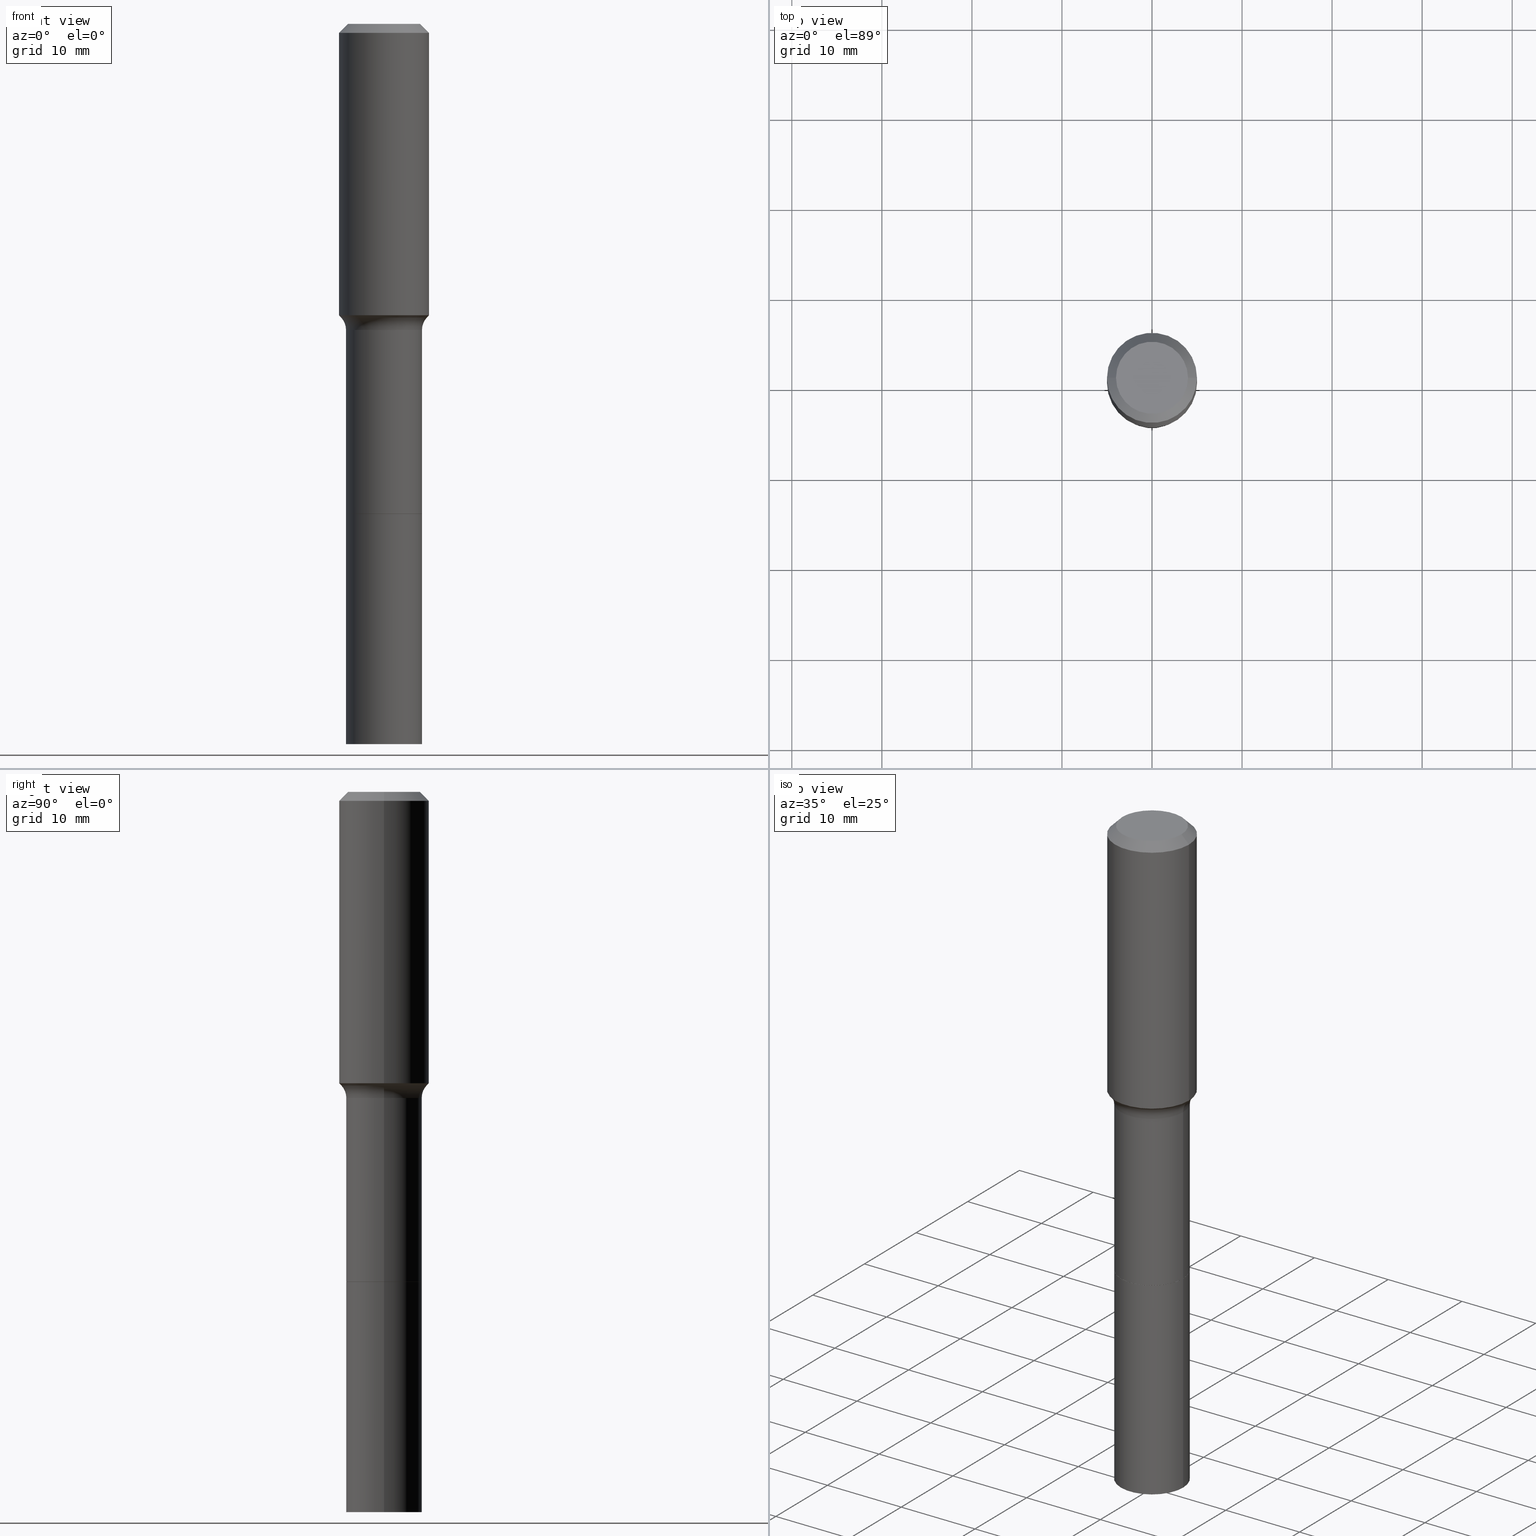
[diagram: canonical four-view strip — front | top / right | iso, engineering-drawing reading convention]
A machine part, canonical four-view strip (front | top / right | iso — engineering-drawing reading convention). The complete STEP part file that produces these views, byte-faithful:
ISO-10303-21;
HEADER;
FILE_DESCRIPTION (( 'STEP AP203' ),
    '1' );
FILE_NAME ('58831.STEP',
    '2025-04-01T15:25:27',
    ( '' ),
    ( '' ),
    'SwSTEP 2.0',
    'SolidWorks 2024',
    '' );
FILE_SCHEMA (( 'CONFIG_CONTROL_DESIGN' ));
ENDSEC;

DATA;
#1 = EDGE_CURVE ( 'NONE', #290, #178, #314, .T. ) ;
#2 = CIRCLE ( 'NONE', #370, 0.1968500000000001915 ) ;
#3 = ORIENTED_EDGE ( 'NONE', *, *, #239, .T. ) ;
#4 = EDGE_LOOP ( 'NONE', ( #213, #174 ) ) ;
#5 = CARTESIAN_POINT ( 'NONE',  ( 3.273504543959424474E-29, -4.673696920175435525E-15, -1.338600000000000234 ) ) ;
#6 = ADVANCED_FACE ( 'NONE', ( #500 ), #135, .F. ) ;
#7 = VECTOR ( 'NONE', #390, 39.37007874015748143 ) ;
#8 = ORIENTED_EDGE ( 'NONE', *, *, #257, .T. ) ;
#9 = SECURITY_CLASSIFICATION ( '', '', #29 ) ;
#10 = CARTESIAN_POINT ( 'NONE',  ( 3.115538477048191315E-29, -4.448163241971869351E-15, -1.274004587246543307 ) ) ;
#11 = DIRECTION ( 'NONE',  ( -2.445468806185136597E-29, 3.491481338843145583E-15, 1.000000000000000000 ) ) ;
#12 = CONICAL_SURFACE ( 'NONE', #119, 0.1874917038704663474, 0.7504915783575719646 ) ;
#13 = ORIENTED_EDGE ( 'NONE', *, *, #60, .T. ) ;
#14 = AXIS2_PLACEMENT_3D ( 'NONE', #294, #244, #446 ) ;
#15 = FACE_OUTER_BOUND ( 'NONE', #439, .T. ) ;
#16 = DIRECTION ( 'NONE',  ( -2.445468806185136597E-29, 3.491481338843145583E-15, 1.000000000000000000 ) ) ;
#17 = EDGE_LOOP ( 'NONE', ( #479, #375, #46, #85 ) ) ;
#18 = DIRECTION ( 'NONE',  ( 2.445468806185136597E-29, -3.491481338843145583E-15, -1.000000000000000000 ) ) ;
#19 = CARTESIAN_POINT ( 'NONE',  ( 0.1968500000000001082, -1.374596203102542397E-15, 9.598753983154305062E-30 ) ) ;
#20 = ORIENTED_EDGE ( 'NONE', *, *, #42, .T. ) ;
#21 = EDGE_CURVE ( 'NONE', #334, #205, #286, .T. ) ;
#22 = DIRECTION ( 'NONE',  ( -2.445468806185136597E-29, 3.491481338843145583E-15, 1.000000000000000000 ) ) ;
#23 = CARTESIAN_POINT ( 'NONE',  ( -0.1968500000000001915, -3.049459866628111563E-15, -1.274004587246543307 ) ) ;
#24 = VERTEX_POINT ( 'NONE', #23 ) ;
#25 = CIRCLE ( 'NONE', #157, 0.1574800000000000089 ) ;
#26 = DIRECTION ( 'NONE',  ( 1.000000000000000000, -6.982962677686266711E-15, 4.876176775795935793E-29 ) ) ;
#27 = DIRECTION ( 'NONE',  ( 7.105427357601001859E-15, 1.000000000000000000, -3.491481338843145583E-15 ) ) ;
#28 = EDGE_CURVE ( 'NONE', #411, #194, #423, .T. ) ;
#29 = SECURITY_CLASSIFICATION_LEVEL ( 'unclassified' ) ;
#30 = CIRCLE ( 'NONE', #317, 0.1874917038704663474 ) ;
#31 = DIRECTION ( 'NONE',  ( -2.445468806185136597E-29, 3.491481338843145583E-15, 1.000000000000000000 ) ) ;
#32 = COORDINATED_UNIVERSAL_TIME_OFFSET ( 5, 0, .BEHIND. ) ;
#33 = CIRCLE ( 'NONE', #237, 0.1574800000000000089 ) ;
#34 = DIRECTION ( 'NONE',  ( -2.445468806185136597E-29, 3.491481338843145583E-15, 1.000000000000000000 ) ) ;
#35 = ADVANCED_FACE ( 'NONE', ( #67 ), #410, .T. ) ;
#36 = CARTESIAN_POINT ( 'NONE',  ( -0.1968500000000000527, 1.237136582792286422E-15, -0.03937000000000030059 ) ) ;
#37 = CIRCLE ( 'NONE', #162, 0.1659999999999999254 ) ;
#38 = DIRECTION ( 'NONE',  ( 1.000000000000000000, -6.982962677686268288E-15, 0.000000000000000000 ) ) ;
#39 = PRODUCT_DEFINITION_FORMATION_WITH_SPECIFIED_SOURCE ( 'ANY', '', #430, .NOT_KNOWN. ) ;
#40 = CONICAL_SURFACE ( 'NONE', #208, 0.1655000000000000082, 0.7853981633977896726 ) ;
#41 = ORIENTED_EDGE ( 'NONE', *, *, #309, .F. ) ;
#42 = EDGE_CURVE ( 'NONE', #178, #290, #399, .T. ) ;
#43 = ORIENTED_EDGE ( 'NONE', *, *, #230, .F. ) ;
#44 = EDGE_CURVE ( 'NONE', #489, #24, #128, .T. ) ;
#45 = DIRECTION ( 'NONE',  ( 1.000000000000000000, -6.982962677686265922E-15, 4.876176775795935793E-29 ) ) ;
#46 = ORIENTED_EDGE ( 'NONE', *, *, #120, .T. ) ;
#47 = FACE_OUTER_BOUND ( 'NONE', #369, .T. ) ;
#48 = DIRECTION ( 'NONE',  ( -2.445468806185136597E-29, 3.491481338843145583E-15, 1.000000000000000000 ) ) ;
#49 = VECTOR ( 'NONE', #425, 39.37007874015748143 ) ;
#50 = ORIENTED_EDGE ( 'NONE', *, *, #76, .F. ) ;
#51 = AXIS2_PLACEMENT_3D ( 'NONE', #349, #270, #342 ) ;
#52 = CARTESIAN_POINT ( 'NONE',  ( 0.000000000000000000, 0.000000000000000000, 0.000000000000000000 ) ) ;
#53 = APPLICATION_CONTEXT ( 'configuration controlled 3d designs of mechanical parts and assemblies' ) ;
#54 = CARTESIAN_POINT ( 'NONE',  ( 5.237215995326088654E-29, -7.477356435266480697E-15, -2.141600000000000392 ) ) ;
#55 = VECTOR ( 'NONE', #211, 39.37007874015748143 ) ;
#56 = ORIENTED_EDGE ( 'NONE', *, *, #266, .T. ) ;
#57 = CONICAL_SURFACE ( 'NONE', #398, 0.1968500000000000527, 0.7853981633974450594 ) ;
#58 = CARTESIAN_POINT ( 'NONE',  ( -0.1659999999999999809, -4.895152866024481976E-15, -2.141100000000000225 ) ) ;
#59 = FACE_OUTER_BOUND ( 'NONE', #499, .T. ) ;
#60 = EDGE_CURVE ( 'NONE', #194, #411, #473, .T. ) ;
#61 = EDGE_LOOP ( 'NONE', ( #88, #20, #322, #163 ) ) ;
#62 = FACE_OUTER_BOUND ( 'NONE', #61, .T. ) ;
#63 = CARTESIAN_POINT ( 'NONE',  ( 0.1655000000000000082, -8.633036758423557081E-15, -2.141599999999999948 ) ) ;
#64 = VERTEX_POINT ( 'NONE', #326 ) ;
#65 = PERSON_AND_ORGANIZATION_ROLE ( 'creator' ) ;
#66 = AXIS2_PLACEMENT_3D ( 'NONE', #511, #426, #418 ) ;
#67 = FACE_OUTER_BOUND ( 'NONE', #17, .T. ) ;
#68 = EDGE_CURVE ( 'NONE', #126, #198, #25, .T. ) ;
#69 = DIRECTION ( 'NONE',  ( -2.445468806185136877E-29, 3.491481338843145188E-15, 1.000000000000000000 ) ) ;
#70 = PERSON_AND_ORGANIZATION_ROLE ( 'creator' ) ;
#71 = CARTESIAN_POINT ( 'NONE',  ( -0.2459999999999999409, -2.925761790205589488E-15, -1.338600000000000234 ) ) ;
#72 = MECHANICAL_CONTEXT ( 'NONE', #303, 'mechanical' ) ;
#73 = DIRECTION ( 'NONE',  ( -1.000000000000000000, 6.982962677686265922E-15, -4.876176775795935793E-29 ) ) ;
#74 =( NAMED_UNIT ( * ) SI_UNIT ( $, .STERADIAN. ) SOLID_ANGLE_UNIT ( ) );
#75 = CARTESIAN_POINT ( 'NONE',  ( 5.237215995326088654E-29, -7.477356435266480697E-15, -2.141600000000000392 ) ) ;
#76 = EDGE_CURVE ( 'NONE', #24, #417, #2, .T. ) ;
#77 = FACE_OUTER_BOUND ( 'NONE', #121, .T. ) ;
#78 = ORIENTED_EDGE ( 'NONE', *, *, #358, .F. ) ;
#79 = LOCAL_TIME ( 11, 25, 27.00000000000000000, #236 ) ;
#80 = PERSON_AND_ORGANIZATION ( #517, #355 ) ;
#81 = CC_DESIGN_PERSON_AND_ORGANIZATION_ASSIGNMENT ( #262, #65, ( #279 ) ) ;
#82 = AXIS2_PLACEMENT_3D ( 'NONE', #450, #248, #443 ) ;
#83 = ORIENTED_EDGE ( 'NONE', *, *, #167, .T. ) ;
#84 = DIRECTION ( 'NONE',  ( -2.445468806185136597E-29, 3.491481338843145583E-15, 1.000000000000000000 ) ) ;
#85 = ORIENTED_EDGE ( 'NONE', *, *, #374, .F. ) ;
#86 = CARTESIAN_POINT ( 'NONE',  ( 5.237215995326088654E-29, -7.477356435266480697E-15, -2.141600000000000392 ) ) ;
#87 = DIRECTION ( 'NONE',  ( -1.000000000000000000, 6.982962677686265922E-15, -4.876176775795935793E-29 ) ) ;
#88 = ORIENTED_EDGE ( 'NONE', *, *, #428, .F. ) ;
#89 = DIRECTION ( 'NONE',  ( -2.445468806185136877E-29, 3.491481338843145188E-15, 1.000000000000000000 ) ) ;
#90 = FACE_OUTER_BOUND ( 'NONE', #297, .T. ) ;
#91 = ORIENTED_EDGE ( 'NONE', *, *, #282, .F. ) ;
#92 = DIRECTION ( 'NONE',  ( 0.6819983600625060260, -2.208861293262552322E-15, 0.7313537016191634654 ) ) ;
#93 = CARTESIAN_POINT ( 'NONE',  ( 0.1659999999999999531, -1.159171804495919785E-15, 8.094453447821250782E-30 ) ) ;
#94 = CIRCLE ( 'NONE', #453, 0.1660000000000000087 ) ;
#95 = ORIENTED_EDGE ( 'NONE', *, *, #239, .F. ) ;
#96 = CARTESIAN_POINT ( 'NONE',  ( -0.1874917038704663752, -3.150993474388610036E-15, -1.284040131195000267 ) ) ;
#97 = ORIENTED_EDGE ( 'NONE', *, *, #68, .F. ) ;
#98 = ORIENTED_EDGE ( 'NONE', *, *, #44, .F. ) ;
#99 = CALENDAR_DATE ( 2025, 1, 4 ) ;
#100 = CARTESIAN_POINT ( 'NONE',  ( 5.237215995326088654E-29, -7.477356435266480697E-15, -2.141600000000000392 ) ) ;
#101 = APPROVAL ( #152, 'UNSPECIFIED' ) ;
#102 = AXIS2_PLACEMENT_3D ( 'NONE', #112, #429, #462 ) ;
#103 = COORDINATED_UNIVERSAL_TIME_OFFSET ( 5, 0, .BEHIND. ) ;
#104 = CIRCLE ( 'NONE', #503, 0.1655000000000000082 ) ;
#105 = DIRECTION ( 'NONE',  ( -1.000000000000000000, 7.105427357601005014E-15, 0.000000000000000000 ) ) ;
#106 = AXIS2_PLACEMENT_3D ( 'NONE', #131, #325, #200 ) ;
#107 = COORDINATED_UNIVERSAL_TIME_OFFSET ( 5, 0, .BEHIND. ) ;
#108 = AXIS2_PLACEMENT_3D ( 'NONE', #340, #11, #218 ) ;
#109 = DIRECTION ( 'NONE',  ( -2.445468806185136597E-29, 3.491481338843145583E-15, 1.000000000000000000 ) ) ;
#110 = CARTESIAN_POINT ( 'NONE',  ( 7.702248551960706711E-29, -1.099676962482037231E-14, -3.149600000000000399 ) ) ;
#111 = CARTESIAN_POINT ( 'NONE',  ( 5.237215995326088654E-29, -7.477356435266480697E-15, -2.141599999999999948 ) ) ;
#112 = CARTESIAN_POINT ( 'NONE',  ( 0.2459999999999999409, -6.391505738886256568E-15, -1.338600000000000234 ) ) ;
#113 = CALENDAR_DATE ( 2025, 1, 4 ) ;
#114 = LINE ( 'NONE', #190, #188 ) ;
#115 = AXIS2_PLACEMENT_3D ( 'NONE', #413, #378, #132 ) ;
#116 = MANIFOLD_SOLID_BREP ( 'Body-Move/Copy2[1]', #357 ) ;
#117 = EDGE_LOOP ( 'NONE', ( #41, #452, #56, #495 ) ) ;
#118 = ADVANCED_FACE ( 'NONE', ( #90 ), #494, .T. ) ;
#119 = AXIS2_PLACEMENT_3D ( 'NONE', #406, #285, #170 ) ;
#120 = EDGE_CURVE ( 'NONE', #417, #64, #203, .T. ) ;
#121 = EDGE_LOOP ( 'NONE', ( #441, #397 ) ) ;
#122 = VERTEX_POINT ( 'NONE', #63 ) ;
#123 = CARTESIAN_POINT ( 'NONE',  ( 0.1874917038704663474, -5.792449726896320379E-15, -1.284040131195000267 ) ) ;
#124 = AXIS2_PLACEMENT_3D ( 'NONE', #86, #84, #197 ) ;
#125 = AXIS2_PLACEMENT_3D ( 'NONE', #54, #251, #138 ) ;
#126 = VERTEX_POINT ( 'NONE', #333 ) ;
#127 = LINE ( 'NONE', #175, #437 ) ;
#128 = LINE ( 'NONE', #385, #179 ) ;
#129 = EDGE_LOOP ( 'NONE', ( #402, #258, #249, #43 ) ) ;
#130 = CC_DESIGN_PERSON_AND_ORGANIZATION_ASSIGNMENT ( #308, #387, ( #39 ) ) ;
#131 = CARTESIAN_POINT ( 'NONE',  ( 9.627810689950955906E-31, -1.374596203102556794E-16, -0.03937000000000030059 ) ) ;
#132 = DIRECTION ( 'NONE',  ( 1.000000000000000000, -6.982962677686263555E-15, 0.000000000000000000 ) ) ;
#133 = ORIENTED_EDGE ( 'NONE', *, *, #409, .F. ) ;
#134 = FACE_OUTER_BOUND ( 'NONE', #117, .T. ) ;
#135 = PLANE ( 'NONE',  #516 ) ;
#136 = ORIENTED_EDGE ( 'NONE', *, *, #150, .F. ) ;
#137 = DIRECTION ( 'NONE',  ( -2.445468806185136597E-29, 3.491481338843145583E-15, 1.000000000000000000 ) ) ;
#138 = DIRECTION ( 'NONE',  ( 1.000000000000000000, -6.982962677686268288E-15, 0.000000000000000000 ) ) ;
#139 = ADVANCED_FACE ( 'NONE', ( #59 ), #12, .T. ) ;
#140 = EDGE_LOOP ( 'NONE', ( #133, #315, #83, #183 ) ) ;
#141 =( LENGTH_UNIT ( ) NAMED_UNIT ( * ) SI_UNIT ( $, .METRE. ) );
#142 = CARTESIAN_POINT ( 'NONE',  ( -0.1660000000000002307, -8.057562088681656781E-15, -3.149600000000000399 ) ) ;
#143 = LOCAL_TIME ( 11, 25, 27.00000000000000000, #107 ) ;
#144 = CARTESIAN_POINT ( 'NONE',  ( -0.1660000000000000087, -8.057562088681659936E-15, -2.141600000000000392 ) ) ;
#145 = CIRCLE ( 'NONE', #82, 0.1655000000000000082 ) ;
#146 = PERSON_AND_ORGANIZATION ( #517, #355 ) ;
#147 = AXIS2_PLACEMENT_3D ( 'NONE', #466, #109, #214 ) ;
#148 = DIRECTION ( 'NONE',  ( -0.7071067811867889352, 7.493145998871226640E-15, 0.7071067811863060992 ) ) ;
#149 = APPROVAL_DATE_TIME ( #424, #195 ) ;
#150 = EDGE_CURVE ( 'NONE', #64, #480, #278, .T. ) ;
#151 = DIRECTION ( 'NONE',  ( -2.445468806185136877E-29, 3.491481338843145188E-15, 1.000000000000000000 ) ) ;
#152 = APPROVAL_STATUS ( 'not_yet_approved' ) ;
#153 = LINE ( 'NONE', #193, #7 ) ;
#154 = ORIENTED_EDGE ( 'NONE', *, *, #191, .F. ) ;
#155 = EDGE_CURVE ( 'NONE', #171, #122, #145, .T. ) ;
#156 = APPROVAL_DATE_TIME ( #272, #101 ) ;
#157 = AXIS2_PLACEMENT_3D ( 'NONE', #177, #16, #455 ) ;
#158 = ORIENTED_EDGE ( 'NONE', *, *, #212, .F. ) ;
#159 = ADVANCED_FACE ( 'NONE', ( #207 ), #477, .T. ) ;
#160 = ORIENTED_EDGE ( 'NONE', *, *, #253, .F. ) ;
#161 = DIRECTION ( 'NONE',  ( 1.000000000000000000, -6.982962677686266711E-15, 4.883557194083112340E-29 ) ) ;
#162 = AXIS2_PLACEMENT_3D ( 'NONE', #510, #31, #187 ) ;
#163 = ORIENTED_EDGE ( 'NONE', *, *, #21, .F. ) ;
#164 = PLANE ( 'NONE',  #348 ) ;
#165 = CONICAL_SURFACE ( 'NONE', #14, 0.1968500000000000527, 0.7853981633974450594 ) ;
#166 = DIRECTION ( 'NONE',  ( 1.000000000000000000, -6.982962677686265133E-15, 0.000000000000000000 ) ) ;
#167 = EDGE_CURVE ( 'NONE', #194, #404, #372, .T. ) ;
#168 = ORIENTED_EDGE ( 'NONE', *, *, #358, .T. ) ;
#169 = FACE_OUTER_BOUND ( 'NONE', #379, .T. ) ;
#170 = DIRECTION ( 'NONE',  ( 1.000000000000000000, -6.982962677686266711E-15, 0.000000000000000000 ) ) ;
#171 = VERTEX_POINT ( 'NONE', #507 ) ;
#172 = DIRECTION ( 'NONE',  ( 1.000000000000000000, -6.982962677686265922E-15, 4.876176775795935793E-29 ) ) ;
#173 = CARTESIAN_POINT ( 'NONE',  ( 9.627810689950955906E-31, -1.374596203102556794E-16, -0.03937000000000030059 ) ) ;
#174 = ORIENTED_EDGE ( 'NONE', *, *, #21, .T. ) ;
#175 = CARTESIAN_POINT ( 'NONE',  ( -0.1659999999999999531, 1.179500941361765976E-15, -8.165432249823140313E-30 ) ) ;
#176 = CC_DESIGN_PERSON_AND_ORGANIZATION_ASSIGNMENT ( #186, #469, ( #9 ) ) ;
#177 = CARTESIAN_POINT ( 'NONE',  ( -9.427742298522567634E-47, 1.346031739168368355E-32, 3.855188123715870730E-18 ) ) ;
#178 = VERTEX_POINT ( 'NONE', #142 ) ;
#179 = VECTOR ( 'NONE', #260, 39.37007874015748143 ) ;
#180 = DATE_AND_TIME ( #300, #143 ) ;
#181 = DIRECTION ( 'NONE',  ( 1.000000000000000000, -6.982962677686266711E-15, 0.000000000000000000 ) ) ;
#182 = APPLICATION_PROTOCOL_DEFINITION ( 'international standard', 'config_control_design', 1994, #53 ) ;
#183 = ORIENTED_EDGE ( 'NONE', *, *, #331, .F. ) ;
#184 = DIRECTION ( 'NONE',  ( -2.445468806185136597E-29, 3.491481338843145583E-15, 1.000000000000000000 ) ) ;
#185 = AXIS2_PLACEMENT_3D ( 'NONE', #350, #354, #392 ) ;
#186 = PERSON_AND_ORGANIZATION ( #517, #355 ) ;
#187 = DIRECTION ( 'NONE',  ( 1.000000000000000000, -6.982962677686265922E-15, 0.000000000000000000 ) ) ;
#188 = VECTOR ( 'NONE', #148, 39.37007874015748143 ) ;
#189 = FACE_OUTER_BOUND ( 'NONE', #359, .T. ) ;
#190 = CARTESIAN_POINT ( 'NONE',  ( -0.1655000000000000082, -6.301408207583514240E-15, -2.141599999999999948 ) ) ;
#191 = EDGE_CURVE ( 'NONE', #171, #411, #114, .T. ) ;
#192 = CIRCLE ( 'NONE', #51, 0.1874917038704663474 ) ;
#193 = CARTESIAN_POINT ( 'NONE',  ( 0.1968500000000000527, -1.487948651171581996E-15, -0.03937000000000030059 ) ) ;
#194 = VERTEX_POINT ( 'NONE', #273 ) ;
#195 = APPROVAL ( #265, 'UNSPECIFIED' ) ;
#196 = ORIENTED_EDGE ( 'NONE', *, *, #68, .T. ) ;
#197 = DIRECTION ( 'NONE',  ( 1.000000000000000000, -6.982962677686263555E-15, 0.000000000000000000 ) ) ;
#198 = VERTEX_POINT ( 'NONE', #356 ) ;
#199 = ADVANCED_BREP_SHAPE_REPRESENTATION ( '58831', ( #116, #451, #66 ), #344 ) ;
#200 = DIRECTION ( 'NONE',  ( 1.000000000000000000, -6.982962677686266711E-15, 0.000000000000000000 ) ) ;
#201 = EDGE_CURVE ( 'NONE', #198, #126, #33, .T. ) ;
#202 = CONICAL_SURFACE ( 'NONE', #185, 0.1874917038704663474, 0.7504915783575719646 ) ;
#203 = LINE ( 'NONE', #19, #55 ) ;
#204 = CC_DESIGN_APPROVAL ( #101, ( #9 ) ) ;
#205 = VERTEX_POINT ( 'NONE', #346 ) ;
#206 = DIRECTION ( 'NONE',  ( -2.445468806185136597E-29, 3.491481338843145583E-15, 1.000000000000000000 ) ) ;
#207 = FACE_OUTER_BOUND ( 'NONE', #129, .T. ) ;
#208 = AXIS2_PLACEMENT_3D ( 'NONE', #454, #137, #362 ) ;
#209 = ORIENTED_EDGE ( 'NONE', *, *, #253, .T. ) ;
#210 = PLANE ( 'NONE',  #302 ) ;
#211 = DIRECTION ( 'NONE',  ( -2.445468806185136877E-29, 3.491481338843145188E-15, 1.000000000000000000 ) ) ;
#212 = EDGE_CURVE ( 'NONE', #205, #334, #94, .T. ) ;
#213 = ORIENTED_EDGE ( 'NONE', *, *, #212, .T. ) ;
#214 = DIRECTION ( 'NONE',  ( 1.000000000000000000, -6.982962677686263555E-15, 0.000000000000000000 ) ) ;
#215 = DIRECTION ( 'NONE',  ( -2.445468806185136877E-29, 3.491481338843145188E-15, 1.000000000000000000 ) ) ;
#216 = ORIENTED_EDGE ( 'NONE', *, *, #391, .F. ) ;
#217 = ADVANCED_FACE ( 'NONE', ( #189 ), #202, .T. ) ;
#218 = DIRECTION ( 'NONE',  ( 1.000000000000000000, -6.982962677686266711E-15, 4.876176775795935793E-29 ) ) ;
#219 = AXIS2_PLACEMENT_3D ( 'NONE', #498, #487, #367 ) ;
#220 = LENGTH_MEASURE_WITH_UNIT ( LENGTH_MEASURE( 0.02539999999999999897 ), #141 );
#221 = LINE ( 'NONE', #226, #227 ) ;
#222 = DIRECTION ( 'NONE',  ( -2.445468806185136597E-29, 3.491481338843145583E-15, 1.000000000000000000 ) ) ;
#223 = CARTESIAN_POINT ( 'NONE',  ( 3.140080086727243021E-29, -4.483202156393047465E-15, -1.284040131195000267 ) ) ;
#224 = EDGE_CURVE ( 'NONE', #459, #404, #476, .T. ) ;
#225 = APPLICATION_PROTOCOL_DEFINITION ( 'international standard', 'config_control_design', 1994, #303 ) ;
#226 = CARTESIAN_POINT ( 'NONE',  ( -0.1968500000000001082, 1.398703375343757985E-15, -9.682923725166787881E-30 ) ) ;
#227 = VECTOR ( 'NONE', #151, 39.37007874015748143 ) ;
#228 = APPROVAL_ROLE ( '' ) ;
#229 = LINE ( 'NONE', #271, #461 ) ;
#230 = EDGE_CURVE ( 'NONE', #122, #194, #513, .T. ) ;
#231 = DIRECTION ( 'NONE',  ( 2.438088387897960049E-29, -3.491481338843145188E-15, -1.000000000000000000 ) ) ;
#232 = CIRCLE ( 'NONE', #394, 0.08000000000000007105 ) ;
#233 = CC_DESIGN_APPROVAL ( #483, ( #279 ) ) ;
#234 = ORIENTED_EDGE ( 'NONE', *, *, #331, .T. ) ;
#235 = CIRCLE ( 'NONE', #106, 0.1968500000000000527 ) ;
#236 = COORDINATED_UNIVERSAL_TIME_OFFSET ( 5, 0, .BEHIND. ) ;
#237 = AXIS2_PLACEMENT_3D ( 'NONE', #301, #34, #393 ) ;
#238 = PRODUCT_DEFINITION_SHAPE ( 'NONE', 'NONE',  #279 ) ;
#239 = EDGE_CURVE ( 'NONE', #489, #515, #232, .T. ) ;
#240 = ORIENTED_EDGE ( 'NONE', *, *, #201, .T. ) ;
#241 = CARTESIAN_POINT ( 'NONE',  ( -0.1660000000000001197, -6.297855493904714130E-15, -2.141600000000000392 ) ) ;
#242 = AXIS2_PLACEMENT_3D ( 'NONE', #491, #289, #329 ) ;
#243 = ORIENTED_EDGE ( 'NONE', *, *, #504, .T. ) ;
#244 = DIRECTION ( 'NONE',  ( 2.445468806185136597E-29, -3.491481338843145583E-15, -1.000000000000000000 ) ) ;
#245 = DIRECTION ( 'NONE',  ( 1.000000000000000000, -6.982962677686266711E-15, 0.000000000000000000 ) ) ;
#246 = ORIENTED_EDGE ( 'NONE', *, *, #28, .F. ) ;
#247 = LINE ( 'NONE', #241, #305 ) ;
#248 = DIRECTION ( 'NONE',  ( -2.445468806185136597E-29, 3.491481338843145583E-15, 1.000000000000000000 ) ) ;
#249 = ORIENTED_EDGE ( 'NONE', *, *, #60, .F. ) ;
#250 = CARTESIAN_POINT ( 'NONE',  ( 0.1659999999999999254, -5.832868724671354916E-15, -1.338600000000000234 ) ) ;
#251 = DIRECTION ( 'NONE',  ( -2.445468806185136597E-29, 3.491481338843145583E-15, 1.000000000000000000 ) ) ;
#252 = AXIS2_PLACEMENT_3D ( 'NONE', #292, #48, #381 ) ;
#253 = EDGE_CURVE ( 'NONE', #489, #459, #30, .T. ) ;
#254 = ORIENTED_EDGE ( 'NONE', *, *, #504, .F. ) ;
#255 = LINE ( 'NONE', #123, #280 ) ;
#256 = CARTESIAN_POINT ( 'NONE',  ( 7.702248551960706711E-29, -1.099676962482037231E-14, -3.149600000000000399 ) ) ;
#257 = EDGE_CURVE ( 'NONE', #404, #515, #37, .T. ) ;
#258 = ORIENTED_EDGE ( 'NONE', *, *, #191, .T. ) ;
#259 = APPROVAL_DATE_TIME ( #457, #483 ) ;
#260 = DIRECTION ( 'NONE',  ( -0.6819983600625060260, 7.399397606724316553E-15, 0.7313537016191634654 ) ) ;
#261 = APPROVAL_PERSON_ORGANIZATION ( #464, #483, #228 ) ;
#262 = PERSON_AND_ORGANIZATION ( #517, #355 ) ;
#263 = CARTESIAN_POINT ( 'NONE',  ( 0.1660000000000002307, -1.215594142931629328E-14, -3.149600000000000399 ) ) ;
#264 = TOROIDAL_SURFACE ( 'NONE', #277, 0.2459999999999999409, 0.08000000000000008493 ) ;
#265 = APPROVAL_STATUS ( 'not_yet_approved' ) ;
#266 = EDGE_CURVE ( 'NONE', #198, #480, #431, .T. ) ;
#267 = DIRECTION ( 'NONE',  ( -2.445468806185136597E-29, 3.491481338843145583E-15, 1.000000000000000000 ) ) ;
#268 = CARTESIAN_POINT ( 'NONE',  ( -0.1659999999999999254, -4.895152866024481976E-15, -1.338600000000000234 ) ) ;
#269 = CARTESIAN_POINT ( 'NONE',  ( 3.273504543959424474E-29, -4.673696920175435525E-15, -1.338600000000000234 ) ) ;
#270 = DIRECTION ( 'NONE',  ( -2.445468806185136597E-29, 3.491481338843145583E-15, 1.000000000000000000 ) ) ;
#271 = CARTESIAN_POINT ( 'NONE',  ( 0.1660000000000001197, -8.636528239762401666E-15, -2.141600000000000392 ) ) ;
#272 = DATE_AND_TIME ( #474, #435 ) ;
#273 = CARTESIAN_POINT ( 'NONE',  ( 0.1659999999999999809, -8.634782499092979373E-15, -2.141100000000000225 ) ) ;
#274 = ORIENTED_EDGE ( 'NONE', *, *, #257, .F. ) ;
#275 = AXIS2_PLACEMENT_3D ( 'NONE', #110, #231, #73 ) ;
#276 = LOCAL_TIME ( 11, 25, 27.00000000000000000, #103 ) ;
#277 = AXIS2_PLACEMENT_3D ( 'NONE', #5, #206, #161 ) ;
#278 = CIRCLE ( 'NONE', #347, 0.1968500000000000527 ) ;
#279 = PRODUCT_DEFINITION ( 'UNKNOWN', '', #39, #488 ) ;
#280 = VECTOR ( 'NONE', #92, 39.37007874015748143 ) ;
#281 = ORIENTED_EDGE ( 'NONE', *, *, #428, .T. ) ;
#282 = EDGE_CURVE ( 'NONE', #290, #205, #229, .T. ) ;
#283 = ORIENTED_EDGE ( 'NONE', *, *, #266, .F. ) ;
#284 = FACE_OUTER_BOUND ( 'NONE', #287, .T. ) ;
#285 = DIRECTION ( 'NONE',  ( -2.445468806185136597E-29, 3.491481338843145583E-15, 1.000000000000000000 ) ) ;
#286 = CIRCLE ( 'NONE', #125, 0.1660000000000000087 ) ;
#287 = EDGE_LOOP ( 'NONE', ( #240, #196 ) ) ;
#288 = DIRECTION ( 'NONE',  ( 2.438088387897960049E-29, -3.491481338843145188E-15, -1.000000000000000000 ) ) ;
#289 = DIRECTION ( 'NONE',  ( -2.445468806185136597E-29, 3.491481338843145583E-15, 1.000000000000000000 ) ) ;
#290 = VERTEX_POINT ( 'NONE', #263 ) ;
#291 = DIRECTION ( 'NONE',  ( -2.445468806185136597E-29, 3.491481338843145583E-15, 1.000000000000000000 ) ) ;
#292 = CARTESIAN_POINT ( 'NONE',  ( 5.237215995326088654E-29, -7.477356435266480697E-15, -2.141599999999999948 ) ) ;
#293 = EDGE_LOOP ( 'NONE', ( #95, #254, #327, #8 ) ) ;
#294 = CARTESIAN_POINT ( 'NONE',  ( 9.627810689950955906E-31, -1.374596203102556794E-16, -0.03937000000000030059 ) ) ;
#295 = ADVANCED_FACE ( 'NONE', ( #77 ), #471, .T. ) ;
#296 = DIRECTION ( 'NONE',  ( 2.438088387897960049E-29, -3.491481338843145188E-15, -1.000000000000000000 ) ) ;
#297 = EDGE_LOOP ( 'NONE', ( #168, #433, #136, #444 ) ) ;
#298 = CARTESIAN_POINT ( 'NONE',  ( 0.000000000000000000, 0.000000000000000000, 0.000000000000000000 ) ) ;
#299 = ORIENTED_EDGE ( 'NONE', *, *, #155, .T. ) ;
#300 = CALENDAR_DATE ( 2025, 1, 4 ) ;
#301 = CARTESIAN_POINT ( 'NONE',  ( -9.427742298522567634E-47, 1.346031739168368355E-32, 3.855188123715870730E-18 ) ) ;
#302 = AXIS2_PLACEMENT_3D ( 'NONE', #328, #371, #172 ) ;
#303 = APPLICATION_CONTEXT ( 'configuration controlled 3d designs of mechanical parts and assemblies' ) ;
#304 = CYLINDRICAL_SURFACE ( 'NONE', #147, 0.1660000000000001197 ) ;
#305 = VECTOR ( 'NONE', #335, 39.37007874015748143 ) ;
#306 =( NAMED_UNIT ( * ) PLANE_ANGLE_UNIT ( ) SI_UNIT ( $, .RADIAN. ) );
#307 = CARTESIAN_POINT ( 'NONE',  ( 0.1655000000000000082, -8.633036758423557081E-15, -2.141599999999999948 ) ) ;
#308 = PERSON_AND_ORGANIZATION ( #517, #355 ) ;
#309 = EDGE_CURVE ( 'NONE', #126, #64, #153, .T. ) ;
#310 = DIRECTION ( 'NONE',  ( 1.000000000000000000, -6.982962677686265922E-15, 0.000000000000000000 ) ) ;
#311 = COORDINATED_UNIVERSAL_TIME_OFFSET ( 5, 0, .BEHIND. ) ;
#312 = FACE_OUTER_BOUND ( 'NONE', #293, .T. ) ;
#313 = ADVANCED_FACE ( 'NONE', ( #312 ), #364, .F. ) ;
#314 = CIRCLE ( 'NONE', #219, 0.1660000000000002307 ) ;
#315 = ORIENTED_EDGE ( 'NONE', *, *, #28, .T. ) ;
#316 = CC_DESIGN_DATE_AND_TIME_ASSIGNMENT ( #180, #509, ( #279 ) ) ;
#317 = AXIS2_PLACEMENT_3D ( 'NONE', #223, #386, #388 ) ;
#318 = AXIS2_PLACEMENT_3D ( 'NONE', #343, #502, #310 ) ;
#319 = VECTOR ( 'NONE', #215, 39.37007874015748143 ) ;
#320 = ORIENTED_EDGE ( 'NONE', *, *, #150, .T. ) ;
#321 = EDGE_CURVE ( 'NONE', #24, #480, #221, .T. ) ;
#322 = ORIENTED_EDGE ( 'NONE', *, *, #282, .T. ) ;
#323 = CYLINDRICAL_SURFACE ( 'NONE', #508, 0.1659999999999999531 ) ;
#324 = ORIENTED_EDGE ( 'NONE', *, *, #230, .T. ) ;
#325 = DIRECTION ( 'NONE',  ( -2.445468806185136597E-29, 3.491481338843145583E-15, 1.000000000000000000 ) ) ;
#326 = CARTESIAN_POINT ( 'NONE',  ( 0.1968500000000000527, -1.512055823412797583E-15, -0.03937000000000030059 ) ) ;
#327 = ORIENTED_EDGE ( 'NONE', *, *, #224, .T. ) ;
#328 = CARTESIAN_POINT ( 'NONE',  ( 7.705735774854212263E-29, -3.942295611561715217E-15, -2.141599999999999948 ) ) ;
#329 = DIRECTION ( 'NONE',  ( 1.000000000000000000, -6.982962677686263555E-15, 0.000000000000000000 ) ) ;
#330 = ORIENTED_EDGE ( 'NONE', *, *, #309, .T. ) ;
#331 = EDGE_CURVE ( 'NONE', #515, #404, #336, .T. ) ;
#332 = CARTESIAN_POINT ( 'NONE',  ( -0.1968500000000000527, -8.941080557973042837E-16, -0.03937000000000030059 ) ) ;
#333 = CARTESIAN_POINT ( 'NONE',  ( 0.1574800000000000089, -1.284169937930321386E-15, 3.855188123724205385E-18 ) ) ;
#334 = VERTEX_POINT ( 'NONE', #144 ) ;
#335 = DIRECTION ( 'NONE',  ( -2.445468806185136877E-29, 3.491481338843145188E-15, 1.000000000000000000 ) ) ;
#336 = CIRCLE ( 'NONE', #318, 0.1659999999999999254 ) ;
#337 = DIRECTION ( 'NONE',  ( -2.445468806185136597E-29, 3.491481338843145583E-15, 1.000000000000000000 ) ) ;
#338 = ORIENTED_EDGE ( 'NONE', *, *, #497, .F. ) ;
#339 = PERSON_AND_ORGANIZATION ( #517, #355 ) ;
#340 = CARTESIAN_POINT ( 'NONE',  ( 0.000000000000000000, 0.000000000000000000, 0.000000000000000000 ) ) ;
#341 = ADVANCED_FACE ( 'NONE', ( #470 ), #304, .T. ) ;
#342 = DIRECTION ( 'NONE',  ( 1.000000000000000000, -6.982962677686266711E-15, 0.000000000000000000 ) ) ;
#343 = CARTESIAN_POINT ( 'NONE',  ( 3.273504543959424474E-29, -4.673696920175435525E-15, -1.338600000000000234 ) ) ;
#344 =( GEOMETRIC_REPRESENTATION_CONTEXT ( 3 ) GLOBAL_UNCERTAINTY_ASSIGNED_CONTEXT ( ( #368 ) ) GLOBAL_UNIT_ASSIGNED_CONTEXT ( ( #345, #306, #74 ) ) REPRESENTATION_CONTEXT ( 'NONE', 'WORKASPACE' ) );
#345 =( CONVERSION_BASED_UNIT ( 'INCH', #220 ) LENGTH_UNIT ( ) NAMED_UNIT ( #351 ) );
#346 = CARTESIAN_POINT ( 'NONE',  ( 0.1660000000000000087, -8.636528239762401666E-15, -2.141600000000000392 ) ) ;
#347 = AXIS2_PLACEMENT_3D ( 'NONE', #173, #419, #181 ) ;
#348 = AXIS2_PLACEMENT_3D ( 'NONE', #442, #288, #485 ) ;
#349 = CARTESIAN_POINT ( 'NONE',  ( 3.140080086727243021E-29, -4.483202156393047465E-15, -1.284040131195000267 ) ) ;
#350 = CARTESIAN_POINT ( 'NONE',  ( 3.140080086727243021E-29, -4.483202156393047465E-15, -1.284040131195000267 ) ) ;
#351 = DIMENSIONAL_EXPONENTS ( 1.000000000000000000, 0.000000000000000000, 0.000000000000000000, 0.000000000000000000, 0.000000000000000000, 0.000000000000000000, 0.000000000000000000 ) ;
#352 = PERSON_AND_ORGANIZATION_ROLE ( 'design_owner' ) ;
#353 = ADVANCED_FACE ( 'NONE', ( #493 ), #323, .T. ) ;
#354 = DIRECTION ( 'NONE',  ( -2.445468806185136597E-29, 3.491481338843145583E-15, 1.000000000000000000 ) ) ;
#355 = ORGANIZATION ( 'UNSPECIFIED', 'UNSPECIFIED', '' ) ;
#356 = CARTESIAN_POINT ( 'NONE',  ( -0.1574800000000000089, 1.168406772637159815E-15, 3.855188123707939751E-18 ) ) ;
#357 = CLOSED_SHELL ( 'NONE', ( #341, #295, #401, #6 ) ) ;
#358 = EDGE_CURVE ( 'NONE', #417, #24, #373, .T. ) ;
#359 = EDGE_LOOP ( 'NONE', ( #98, #209, #382, #50 ) ) ;
#360 = CC_DESIGN_PERSON_AND_ORGANIZATION_ASSIGNMENT ( #146, #352, ( #430 ) ) ;
#361 = ORIENTED_EDGE ( 'NONE', *, *, #224, .F. ) ;
#362 = DIRECTION ( 'NONE',  ( 1.000000000000000000, -6.982962677686265133E-15, 0.000000000000000000 ) ) ;
#363 = ORIENTED_EDGE ( 'NONE', *, *, #167, .F. ) ;
#364 = TOROIDAL_SURFACE ( 'NONE', #434, 0.2459999999999999409, 0.08000000000000008493 ) ;
#365 = CARTESIAN_POINT ( 'NONE',  ( 0.000000000000000000, 0.000000000000000000, 0.000000000000000000 ) ) ;
#366 = APPROVAL_PERSON_ORGANIZATION ( #80, #101, #395 ) ;
#367 = DIRECTION ( 'NONE',  ( 1.000000000000000000, -6.982962677686265133E-15, 0.000000000000000000 ) ) ;
#368 = UNCERTAINTY_MEASURE_WITH_UNIT (LENGTH_MEASURE( 1.000000000000000082E-05 ), #345, 'distance_accuracy_value', 'NONE');
#369 = EDGE_LOOP ( 'NONE', ( #338, #484 ) ) ;
#370 = AXIS2_PLACEMENT_3D ( 'NONE', #447, #416, #245 ) ;
#371 = DIRECTION ( 'NONE',  ( -2.438088387897960049E-29, 3.491481338843145188E-15, 1.000000000000000000 ) ) ;
#372 = LINE ( 'NONE', #93, #319 ) ;
#373 = CIRCLE ( 'NONE', #465, 0.1968500000000001915 ) ;
#374 = EDGE_CURVE ( 'NONE', #480, #64, #235, .T. ) ;
#375 = ORIENTED_EDGE ( 'NONE', *, *, #76, .T. ) ;
#376 = CYLINDRICAL_SURFACE ( 'NONE', #124, 0.1660000000000001197 ) ;
#377 = CC_DESIGN_SECURITY_CLASSIFICATION ( #9, ( #39 ) ) ;
#378 = DIRECTION ( 'NONE',  ( -2.445468806185136597E-29, 3.491481338843145583E-15, 1.000000000000000000 ) ) ;
#379 = EDGE_LOOP ( 'NONE', ( #160, #3, #234, #361 ) ) ;
#380 = FACE_OUTER_BOUND ( 'NONE', #448, .T. ) ;
#381 = DIRECTION ( 'NONE',  ( 1.000000000000000000, -6.982962677686265133E-15, 0.000000000000000000 ) ) ;
#382 = ORIENTED_EDGE ( 'NONE', *, *, #391, .T. ) ;
#383 = DIRECTION ( 'NONE',  ( 1.000000000000000000, -6.982962677686265133E-15, 0.000000000000000000 ) ) ;
#384 = ADVANCED_FACE ( 'NONE', ( #380 ), #57, .T. ) ;
#385 = CARTESIAN_POINT ( 'NONE',  ( -0.1874917038704663474, -3.150993474388610430E-15, -1.284040131195000267 ) ) ;
#386 = DIRECTION ( 'NONE',  ( -2.445468806185136597E-29, 3.491481338843145583E-15, 1.000000000000000000 ) ) ;
#387 = PERSON_AND_ORGANIZATION_ROLE ( 'design_supplier' ) ;
#388 = DIRECTION ( 'NONE',  ( 1.000000000000000000, -6.982962677686266711E-15, 0.000000000000000000 ) ) ;
#389 = APPROVAL_STATUS ( 'not_yet_approved' ) ;
#390 = DIRECTION ( 'NONE',  ( 0.7071067811865452413, -7.319954787623248157E-15, -0.7071067811865497932 ) ) ;
#391 = EDGE_CURVE ( 'NONE', #459, #417, #255, .T. ) ;
#392 = DIRECTION ( 'NONE',  ( 1.000000000000000000, -6.982962677686266711E-15, 0.000000000000000000 ) ) ;
#393 = DIRECTION ( 'NONE',  ( 1.000000000000000000, -6.982962677686265922E-15, 4.876223630392693006E-29 ) ) ;
#394 = AXIS2_PLACEMENT_3D ( 'NONE', #71, #27, #105 ) ;
#395 = APPROVAL_ROLE ( '' ) ;
#396 = ADVANCED_FACE ( 'NONE', ( #284 ), #164, .F. ) ;
#397 = ORIENTED_EDGE ( 'NONE', *, *, #42, .F. ) ;
#398 = AXIS2_PLACEMENT_3D ( 'NONE', #415, #18, #482 ) ;
#399 = CIRCLE ( 'NONE', #403, 0.1660000000000002307 ) ;
#400 = ADVANCED_FACE ( 'NONE', ( #134 ), #165, .T. ) ;
#401 = ADVANCED_FACE ( 'NONE', ( #62 ), #376, .T. ) ;
#402 = ORIENTED_EDGE ( 'NONE', *, *, #497, .T. ) ;
#403 = AXIS2_PLACEMENT_3D ( 'NONE', #256, #458, #166 ) ;
#404 = VERTEX_POINT ( 'NONE', #250 ) ;
#405 = CYLINDRICAL_SURFACE ( 'NONE', #422, 0.1659999999999999531 ) ;
#406 = CARTESIAN_POINT ( 'NONE',  ( 3.140080086727243021E-29, -4.483202156393047465E-15, -1.284040131195000267 ) ) ;
#407 = EDGE_LOOP ( 'NONE', ( #13, #475, #274, #363 ) ) ;
#408 = CARTESIAN_POINT ( 'NONE',  ( 0.1874917038704663752, -5.792449726896320379E-15, -1.284040131195000267 ) ) ;
#409 = EDGE_CURVE ( 'NONE', #411, #515, #127, .T. ) ;
#410 = CYLINDRICAL_SURFACE ( 'NONE', #108, 0.1968500000000001082 ) ;
#411 = VERTEX_POINT ( 'NONE', #58 ) ;
#412 = FACE_OUTER_BOUND ( 'NONE', #140, .T. ) ;
#413 = CARTESIAN_POINT ( 'NONE',  ( 5.235993260922996974E-29, -7.475610694597059983E-15, -2.141100000000000225 ) ) ;
#414 = ORIENTED_EDGE ( 'NONE', *, *, #44, .T. ) ;
#415 = CARTESIAN_POINT ( 'NONE',  ( 9.627810689950955906E-31, -1.374596203102556794E-16, -0.03937000000000030059 ) ) ;
#416 = DIRECTION ( 'NONE',  ( -2.445468806185136597E-29, 3.491481338843145583E-15, 1.000000000000000000 ) ) ;
#417 = VERTEX_POINT ( 'NONE', #496 ) ;
#418 = DIRECTION ( 'NONE',  ( 1.000000000000000000, 0.000000000000000000, 0.000000000000000000 ) ) ;
#419 = DIRECTION ( 'NONE',  ( -2.445468806185136597E-29, 3.491481338843145583E-15, 1.000000000000000000 ) ) ;
#420 = APPROVAL_PERSON_ORGANIZATION ( #339, #195, #460 ) ;
#421 = CALENDAR_DATE ( 2025, 1, 4 ) ;
#422 = AXIS2_PLACEMENT_3D ( 'NONE', #52, #22, #45 ) ;
#423 = CIRCLE ( 'NONE', #115, 0.1659999999999999809 ) ;
#424 = DATE_AND_TIME ( #421, #276 ) ;
#425 = DIRECTION ( 'NONE',  ( 0.7071067811867889352, -2.468850131084785360E-15, 0.7071067811863060992 ) ) ;
#426 = DIRECTION ( 'NONE',  ( 0.000000000000000000, 0.000000000000000000, 1.000000000000000000 ) ) ;
#427 = DIRECTION ( 'NONE',  ( 1.000000000000000000, -6.982962677686266711E-15, 4.883557194083112340E-29 ) ) ;
#428 = EDGE_CURVE ( 'NONE', #178, #334, #247, .T. ) ;
#429 = DIRECTION ( 'NONE',  ( -6.982962677686266711E-15, -1.000000000000000000, 3.491481338843145583E-15 ) ) ;
#430 = PRODUCT ( '58831', '58831', '', ( #72 ) ) ;
#431 = LINE ( 'NONE', #36, #501 ) ;
#432 = PRODUCT_RELATED_PRODUCT_CATEGORY ( 'detail', '', ( #430 ) ) ;
#433 = ORIENTED_EDGE ( 'NONE', *, *, #321, .T. ) ;
#434 = AXIS2_PLACEMENT_3D ( 'NONE', #269, #184, #427 ) ;
#435 = LOCAL_TIME ( 11, 25, 27.00000000000000000, #311 ) ;
#436 = DATE_TIME_ROLE ( 'classification_date' ) ;
#437 = VECTOR ( 'NONE', #89, 39.37007874015748143 ) ;
#438 = ADVANCED_FACE ( 'NONE', ( #412 ), #405, .T. ) ;
#439 = EDGE_LOOP ( 'NONE', ( #154, #299, #324, #246 ) ) ;
#440 = DIRECTION ( 'NONE',  ( -2.445468806185136597E-29, 3.491481338843145583E-15, 1.000000000000000000 ) ) ;
#441 = ORIENTED_EDGE ( 'NONE', *, *, #1, .F. ) ;
#442 = CARTESIAN_POINT ( 'NONE',  ( -4.713871149261283817E-47, 6.730158695841841775E-33, 1.927594061857935365E-18 ) ) ;
#443 = DIRECTION ( 'NONE',  ( 1.000000000000000000, -6.982962677686265133E-15, 0.000000000000000000 ) ) ;
#444 = ORIENTED_EDGE ( 'NONE', *, *, #120, .F. ) ;
#445 = ADVANCED_FACE ( 'NONE', ( #15 ), #40, .T. ) ;
#446 = DIRECTION ( 'NONE',  ( -1.000000000000000000, 6.982962677686266711E-15, 0.000000000000000000 ) ) ;
#447 = CARTESIAN_POINT ( 'NONE',  ( 3.115538477048191315E-29, -4.448163241971869351E-15, -1.274004587246543307 ) ) ;
#448 = EDGE_LOOP ( 'NONE', ( #97, #330, #320, #283 ) ) ;
#449 = DIRECTION ( 'NONE',  ( 1.000000000000000000, -6.982962677686265922E-15, 4.876176775795935793E-29 ) ) ;
#450 = CARTESIAN_POINT ( 'NONE',  ( 5.237215995326088654E-29, -7.477356435266480697E-15, -2.141599999999999948 ) ) ;
#451 = MANIFOLD_SOLID_BREP ( 'Body-Move/Copy2[2]', #486 ) ;
#452 = ORIENTED_EDGE ( 'NONE', *, *, #201, .F. ) ;
#453 = AXIS2_PLACEMENT_3D ( 'NONE', #75, #267, #38 ) ;
#454 = CARTESIAN_POINT ( 'NONE',  ( 5.237215995326088654E-29, -7.477356435266480697E-15, -2.141599999999999948 ) ) ;
#455 = DIRECTION ( 'NONE',  ( 1.000000000000000000, -6.982962677686265922E-15, 4.876223630392693006E-29 ) ) ;
#456 = ORIENTED_EDGE ( 'NONE', *, *, #1, .T. ) ;
#457 = DATE_AND_TIME ( #99, #463 ) ;
#458 = DIRECTION ( 'NONE',  ( -2.445468806185136597E-29, 3.491481338843145583E-15, 1.000000000000000000 ) ) ;
#459 = VERTEX_POINT ( 'NONE', #408 ) ;
#460 = APPROVAL_ROLE ( '' ) ;
#461 = VECTOR ( 'NONE', #69, 39.37007874015748143 ) ;
#462 = DIRECTION ( 'NONE',  ( 1.000000000000000000, -6.982962677686265922E-15, 0.000000000000000000 ) ) ;
#463 = LOCAL_TIME ( 11, 25, 27.00000000000000000, #32 ) ;
#464 = PERSON_AND_ORGANIZATION ( #517, #355 ) ;
#465 = AXIS2_PLACEMENT_3D ( 'NONE', #10, #440, #490 ) ;
#466 = CARTESIAN_POINT ( 'NONE',  ( 5.237215995326088654E-29, -7.477356435266480697E-15, -2.141600000000000392 ) ) ;
#467 = ADVANCED_FACE ( 'NONE', ( #169 ), #264, .F. ) ;
#468 = DIRECTION ( 'NONE',  ( -0.7071067811865452413, 2.468850131082233000E-15, -0.7071067811865497932 ) ) ;
#469 = PERSON_AND_ORGANIZATION_ROLE ( 'classification_officer' ) ;
#470 = FACE_OUTER_BOUND ( 'NONE', #492, .T. ) ;
#471 = PLANE ( 'NONE',  #275 ) ;
#472 = ADVANCED_FACE ( 'NONE', ( #47 ), #210, .F. ) ;
#473 = CIRCLE ( 'NONE', #242, 0.1659999999999999809 ) ;
#474 = CALENDAR_DATE ( 2025, 1, 4 ) ;
#475 = ORIENTED_EDGE ( 'NONE', *, *, #409, .T. ) ;
#476 = CIRCLE ( 'NONE', #102, 0.08000000000000007105 ) ;
#477 = CONICAL_SURFACE ( 'NONE', #252, 0.1655000000000000082, 0.7853981633977896726 ) ;
#478 = CC_DESIGN_DATE_AND_TIME_ASSIGNMENT ( #518, #436, ( #9 ) ) ;
#479 = ORIENTED_EDGE ( 'NONE', *, *, #321, .F. ) ;
#480 = VERTEX_POINT ( 'NONE', #332 ) ;
#481 = CC_DESIGN_APPROVAL ( #195, ( #39 ) ) ;
#482 = DIRECTION ( 'NONE',  ( -1.000000000000000000, 6.982962677686266711E-15, 0.000000000000000000 ) ) ;
#483 = APPROVAL ( #389, 'UNSPECIFIED' ) ;
#484 = ORIENTED_EDGE ( 'NONE', *, *, #155, .F. ) ;
#485 = DIRECTION ( 'NONE',  ( -1.000000000000000000, 6.982962677686265922E-15, -4.876176775795935793E-29 ) ) ;
#486 = CLOSED_SHELL ( 'NONE', ( #159, #384, #118, #139, #467, #353, #438, #313, #217, #35, #400, #396, #472, #445 ) ) ;
#487 = DIRECTION ( 'NONE',  ( -2.445468806185136597E-29, 3.491481338843145583E-15, 1.000000000000000000 ) ) ;
#488 = DESIGN_CONTEXT ( 'detailed design', #53, 'design' ) ;
#489 = VERTEX_POINT ( 'NONE', #96 ) ;
#490 = DIRECTION ( 'NONE',  ( 1.000000000000000000, -6.982962677686266711E-15, 0.000000000000000000 ) ) ;
#491 = CARTESIAN_POINT ( 'NONE',  ( 5.235993260922996974E-29, -7.475610694597059983E-15, -2.141100000000000225 ) ) ;
#492 = EDGE_LOOP ( 'NONE', ( #456, #281, #158, #91 ) ) ;
#493 = FACE_OUTER_BOUND ( 'NONE', #407, .T. ) ;
#494 = CYLINDRICAL_SURFACE ( 'NONE', #506, 0.1968500000000001082 ) ;
#495 = ORIENTED_EDGE ( 'NONE', *, *, #374, .T. ) ;
#496 = CARTESIAN_POINT ( 'NONE',  ( 0.1968500000000001915, -5.822759445074413326E-15, -1.274004587246543307 ) ) ;
#497 = EDGE_CURVE ( 'NONE', #122, #171, #104, .T. ) ;
#498 = CARTESIAN_POINT ( 'NONE',  ( 7.702248551960706711E-29, -1.099676962482037231E-14, -3.149600000000000399 ) ) ;
#499 = EDGE_LOOP ( 'NONE', ( #243, #414, #78, #216 ) ) ;
#500 = FACE_OUTER_BOUND ( 'NONE', #4, .T. ) ;
#501 = VECTOR ( 'NONE', #468, 39.37007874015748143 ) ;
#502 = DIRECTION ( 'NONE',  ( -2.445468806185136597E-29, 3.491481338843145583E-15, 1.000000000000000000 ) ) ;
#503 = AXIS2_PLACEMENT_3D ( 'NONE', #111, #222, #383 ) ;
#504 = EDGE_CURVE ( 'NONE', #459, #489, #192, .T. ) ;
#505 = PERSON_AND_ORGANIZATION ( #517, #355 ) ;
#506 = AXIS2_PLACEMENT_3D ( 'NONE', #298, #337, #26 ) ;
#507 = CARTESIAN_POINT ( 'NONE',  ( -0.1655000000000000082, -6.298758980409403828E-15, -2.141599999999999948 ) ) ;
#508 = AXIS2_PLACEMENT_3D ( 'NONE', #365, #291, #449 ) ;
#509 = DATE_TIME_ROLE ( 'creation_date' ) ;
#510 = CARTESIAN_POINT ( 'NONE',  ( 3.273504543959424474E-29, -4.673696920175435525E-15, -1.338600000000000234 ) ) ;
#511 = CARTESIAN_POINT ( 'NONE',  ( 0.000000000000000000, 0.000000000000000000, 0.000000000000000000 ) ) ;
#512 = CC_DESIGN_PERSON_AND_ORGANIZATION_ASSIGNMENT ( #505, #70, ( #39 ) ) ;
#513 = LINE ( 'NONE', #307, #49 ) ;
#514 = SHAPE_DEFINITION_REPRESENTATION ( #238, #199 ) ;
#515 = VERTEX_POINT ( 'NONE', #268 ) ;
#516 = AXIS2_PLACEMENT_3D ( 'NONE', #100, #296, #87 ) ;
#517 = PERSON ( 'UNSPECIFIED', 'UNSPECIFIED', 'UNSPECIFIED', ('UNSPECIFIED'), ('UNSPECIFIED'), ('UNSPECIFIED') ) ;
#518 = DATE_AND_TIME ( #113, #79 ) ;
ENDSEC;
END-ISO-10303-21;
